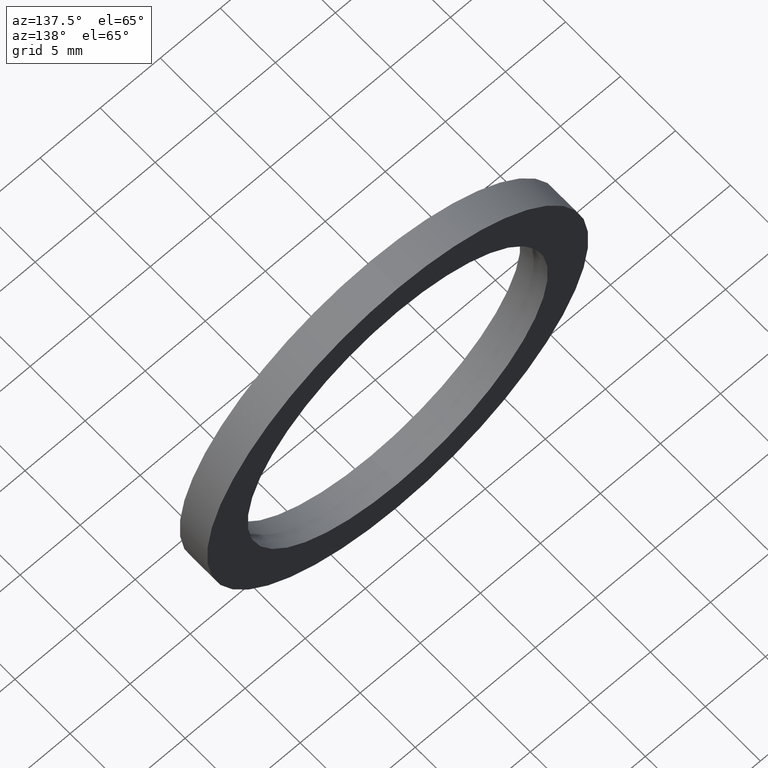
[diagram: clean part render]
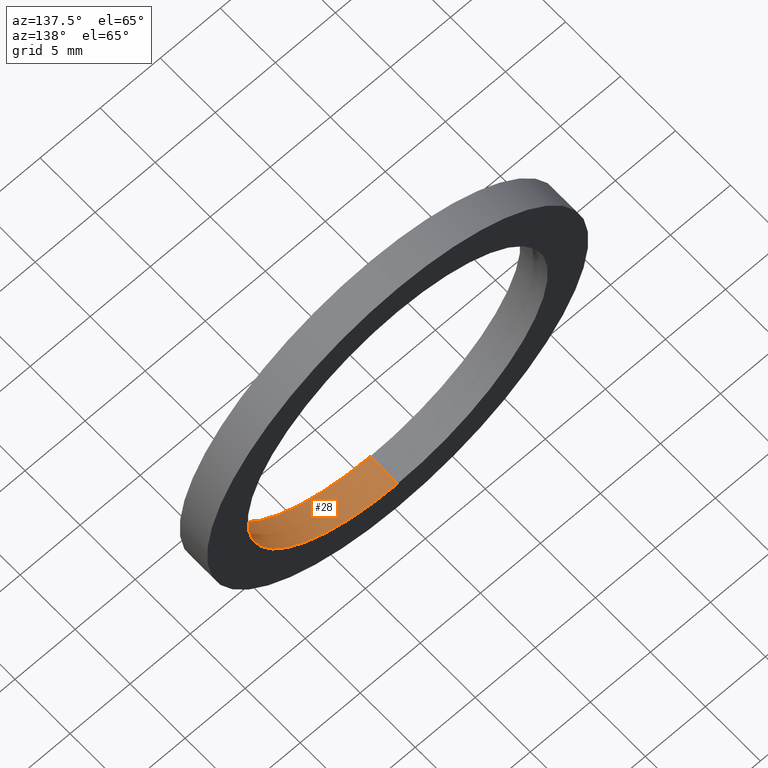
[diagram: same view with one face highlighted and labeled with its STEP entity id]
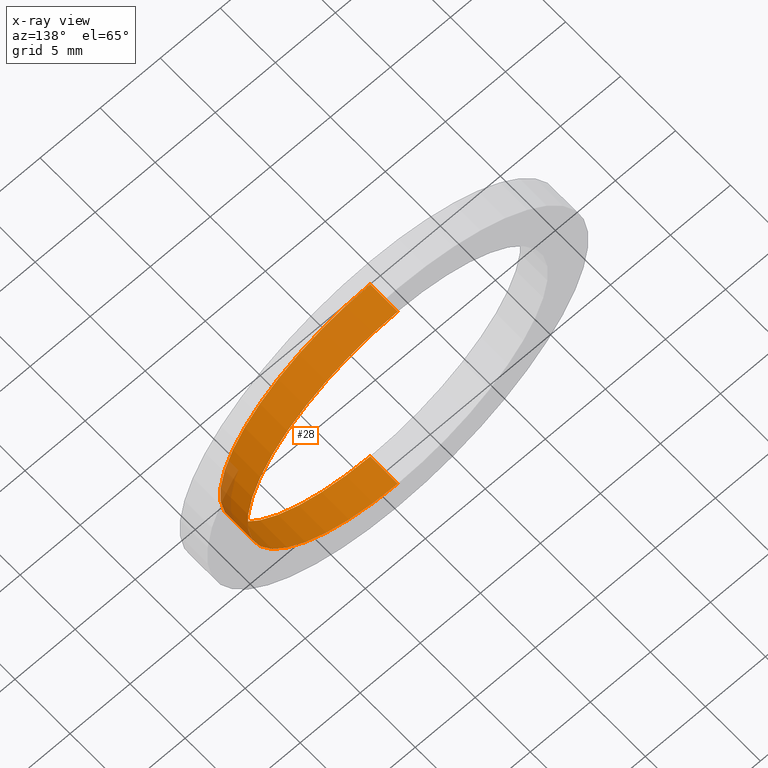
[diagram: x-ray of the same camera — body ghosted, the highlighted face saturated]
A machine part, auxiliary view. The second image highlights one B-rep face of the part: STEP entity #28.
The next image is the same camera in x-ray: the body ghosted, the highlighted face saturated — about 4% of this face is hidden behind the body in this view.
In plain terms, the highlighted cylindrical surface (partial cylindrical patch) has radius 12.5 mm, axis along (-0, 1, -0).
Its self-contained STEP definition (entity closure, byte-faithful):
#1 = DIRECTION ( 'NONE',  ( -0.0000000000000000000, 1.000000000000000000, -0.0000000000000000000 ) ) ;
#13 = VERTEX_POINT ( 'NONE', #177 ) ;
#28 = ADVANCED_FACE ( 'NONE', ( #93 ), #160, .F. ) ;
#35 = CARTESIAN_POINT ( 'NONE',  ( 0.0000000000000000000, 77.14414226561778800, 12.50000000000001100 ) ) ;
#54 = EDGE_CURVE ( 'NONE', #13, #69, #241, .T. ) ;
#68 = ORIENTED_EDGE ( 'NONE', *, *, #134, .F. ) ;
#69 = VERTEX_POINT ( 'NONE', #185 ) ;
#78 = CARTESIAN_POINT ( 'NONE',  ( 1.530808498934192900E-015, 0.0000000000000000000, -12.50000000000001100 ) ) ;
#79 = DIRECTION ( 'NONE',  ( -0.0000000000000000000, 1.000000000000000000, -0.0000000000000000000 ) ) ;
#81 = ORIENTED_EDGE ( 'NONE', *, *, #119, .F. ) ;
#85 = DIRECTION ( 'NONE',  ( -0.0000000000000000000, 1.000000000000000000, -0.0000000000000000000 ) ) ;
#87 = VECTOR ( 'NONE', #1, 1000.000000000000000 ) ;
#93 = FACE_OUTER_BOUND ( 'NONE', #129, .T. ) ;
#97 = CARTESIAN_POINT ( 'NONE',  ( 1.530808498934192900E-015, 2.500000000000002200, -12.50000000000001100 ) ) ;
#100 = CIRCLE ( 'NONE', #207, 12.50000000000001100 ) ;
#107 = DIRECTION ( 'NONE',  ( 0.0000000000000000000, 0.0000000000000000000, 1.000000000000000000 ) ) ;
#108 = CARTESIAN_POINT ( 'NONE',  ( 1.530808498934192900E-015, 77.14414226561778800, -12.50000000000001100 ) ) ;
#116 = AXIS2_PLACEMENT_3D ( 'NONE', #147, #79, #167 ) ;
#118 = CIRCLE ( 'NONE', #116, 12.50000000000001100 ) ;
#119 = EDGE_CURVE ( 'NONE', #212, #171, #189, .T. ) ;
#127 = DIRECTION ( 'NONE',  ( -0.0000000000000000000, 1.000000000000000000, -0.0000000000000000000 ) ) ;
#129 = EDGE_LOOP ( 'NONE', ( #81, #68, #195, #217 ) ) ;
#134 = EDGE_CURVE ( 'NONE', #13, #212, #100, .T. ) ;
#147 = CARTESIAN_POINT ( 'NONE',  ( 0.0000000000000000000, 2.500000000000002200, 0.0000000000000000000 ) ) ;
#160 = CYLINDRICAL_SURFACE ( 'NONE', #238, 12.50000000000001100 ) ;
#166 = VECTOR ( 'NONE', #222, 1000.000000000000000 ) ;
#167 = DIRECTION ( 'NONE',  ( 0.0000000000000000000, 0.0000000000000000000, 1.000000000000000000 ) ) ;
#171 = VERTEX_POINT ( 'NONE', #97 ) ;
#177 = CARTESIAN_POINT ( 'NONE',  ( 0.0000000000000000000, 0.0000000000000000000, 12.50000000000001100 ) ) ;
#184 = CARTESIAN_POINT ( 'NONE',  ( 0.0000000000000000000, 0.0000000000000000000, 0.0000000000000000000 ) ) ;
#185 = CARTESIAN_POINT ( 'NONE',  ( 0.0000000000000000000, 2.500000000000002200, 12.50000000000001100 ) ) ;
#189 = LINE ( 'NONE', #108, #166 ) ;
#195 = ORIENTED_EDGE ( 'NONE', *, *, #54, .T. ) ;
#207 = AXIS2_PLACEMENT_3D ( 'NONE', #184, #127, #209 ) ;
#209 = DIRECTION ( 'NONE',  ( 0.0000000000000000000, 0.0000000000000000000, 1.000000000000000000 ) ) ;
#212 = VERTEX_POINT ( 'NONE', #78 ) ;
#217 = ORIENTED_EDGE ( 'NONE', *, *, #232, .T. ) ;
#222 = DIRECTION ( 'NONE',  ( -0.0000000000000000000, 1.000000000000000000, -0.0000000000000000000 ) ) ;
#232 = EDGE_CURVE ( 'NONE', #69, #171, #118, .T. ) ;
#238 = AXIS2_PLACEMENT_3D ( 'NONE', #239, #85, #107 ) ;
#239 = CARTESIAN_POINT ( 'NONE',  ( 0.0000000000000000000, 77.14414226561778800, 0.0000000000000000000 ) ) ;
#241 = LINE ( 'NONE', #35, #87 ) ;